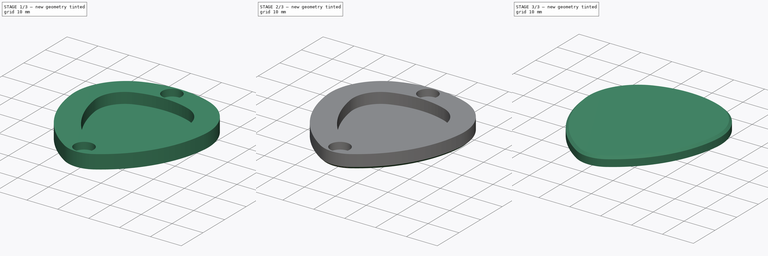
[diagram: build sequence overview — one tinted view per stage of 3, left to right]
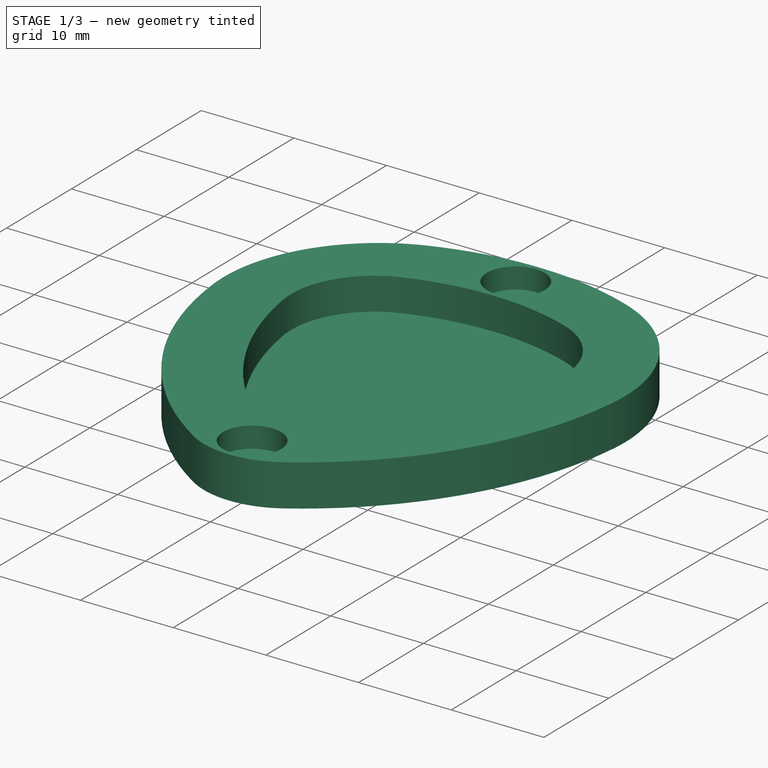
[diagram: stage 1 of 3 — iso view after this stage's code; geometry added in this stage tinted green]
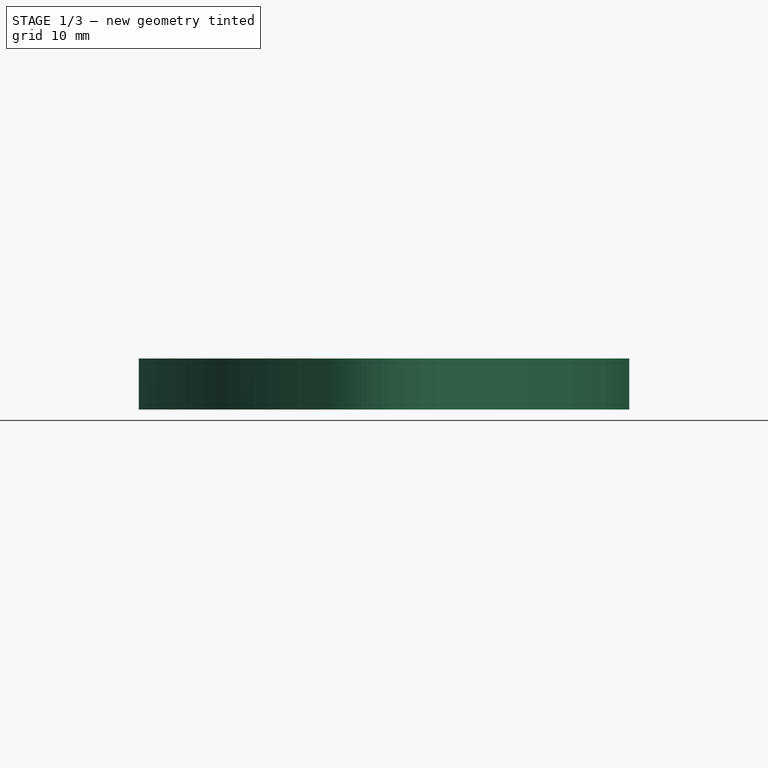
[diagram: stage 1 of 3 — front view after this stage's code; geometry added in this stage tinted green]
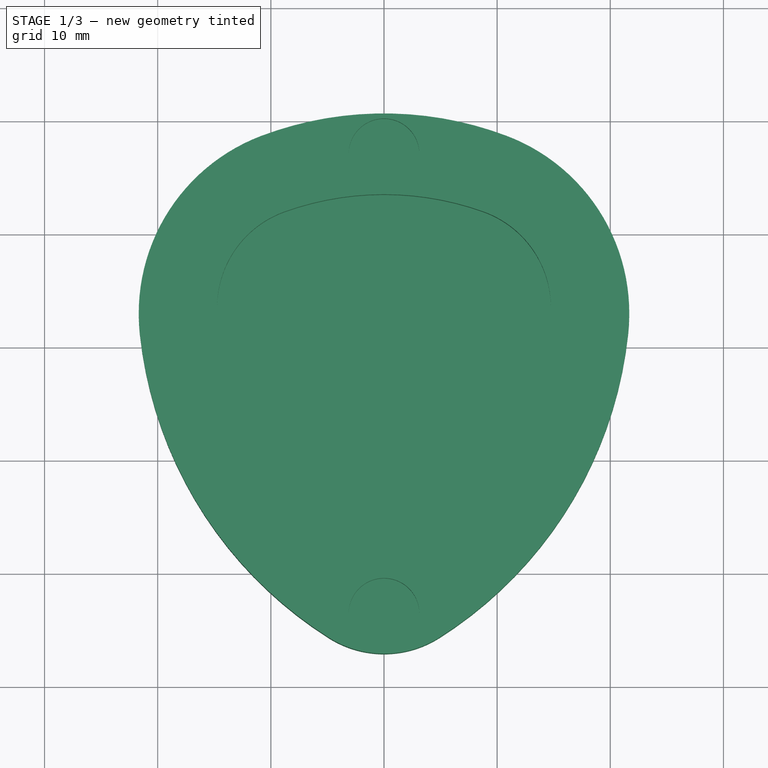
[diagram: stage 1 of 3 — top view after this stage's code; geometry added in this stage tinted green]
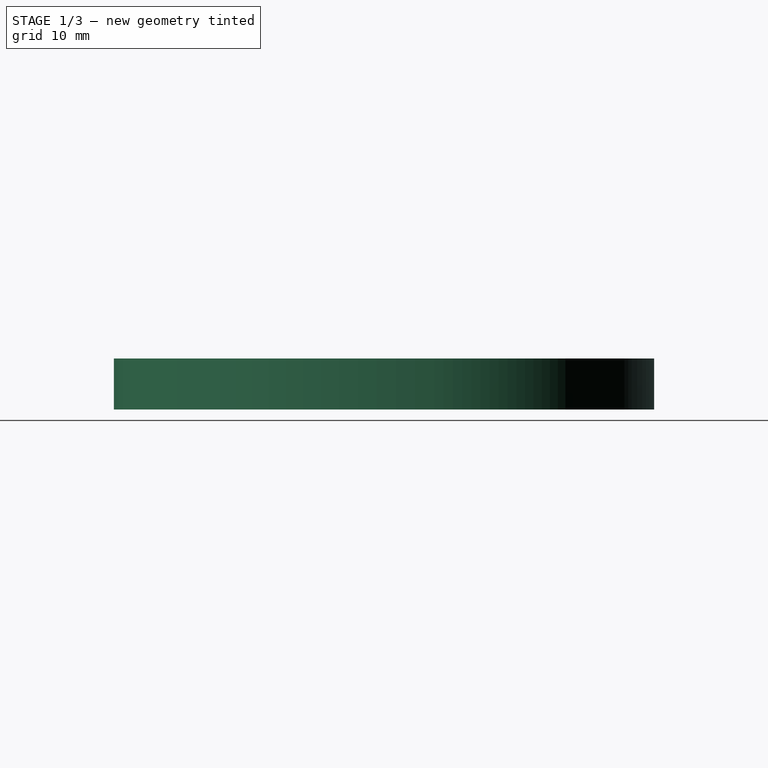
[diagram: stage 1 of 3 — right view after this stage's code; geometry added in this stage tinted green]
FCSTD DOCUMENT  (FreeCAD 1.1R20260223 (Git shallow))
Label: Mediator box
License: Creative Commons Attribution 4.0
objects: Sketcher::SketchObject×7, PartDesign::Pad×3, Part::DatumLine×3, App::Point×2, PartDesign::Pocket×2, PartDesign::Chamfer×2, PartDesign::Body×2, PartDesign::SubShapeBinder×1, Part::DatumPlane×1, PartDesign::Groove×1
note: 41 computed .brp shape members not serialized (recipe doc carries the construction recipe); baked Part::Feature solids carry a one-line shape summary decoded from their .brp

FEATURE [App::Point] Origin001
  Role = Origin
FEATURE [Sketcher::SketchObject] Sketch
  ArcFitTolerance = 1e-06
  AttachmentSupport = -> [Origin]
  ExternalTypes = [0]
  FullyConstrained = false
  MakeInternals = false
  MapMode = 5
  sketch-geometry (18):
    g0: ArcOfCircle CenterX=4.2e-15 CenterY=7.46875 CenterZ=0 NormalX=0 NormalY=0 NormalZ=1 AngleXU=0 Radius=26.0312 StartAngle=1.22641 EndAngle=1.91518
    g1: ArcOfCircle CenterX=-5.75 CenterY=23.5 CenterZ=0 NormalX=0 NormalY=0 NormalZ=1 AngleXU=0 Radius=9 StartAngle=1.91518 EndAngle=3.29213
    g2: ArcOfCircle CenterX=5.75 CenterY=23.5 CenterZ=0 NormalX=0 NormalY=0 NormalZ=1 AngleXU=0 Radius=9 StartAngle=6.13265 EndAngle=7.5096
    g3: GeomPoint [constr] X=-14.75 Y=23.5 Z=0
    g4: GeomPoint [constr] X=14.75 Y=23.5 Z=0
    g5: ArcOfCircle CenterX=6e-16 CenterY=4 CenterZ=0 NormalX=0 NormalY=0 NormalZ=1 AngleXU=0 Radius=4 StartAngle=4.02766 EndAngle=5.39712
    g6: ArcOfCircle CenterX=-18.9855 CenterY=27.2521 CenterZ=0 NormalX=0 NormalY=0 NormalZ=1 AngleXU=0 Radius=34.0185 StartAngle=5.39712 EndAngle=6.13265
    g7: ArcOfCircle CenterX=18.9855 CenterY=27.2521 CenterZ=0 NormalX=0 NormalY=0 NormalZ=1 AngleXU=0 Radius=34.0185 StartAngle=3.29213 EndAngle=4.02766
    g8: GeomPoint [constr] X=0 Y=33.5 Z=0
    g9: GeomPoint [constr] X=0 Y=0 Z=0
    g10: GeomPoint [constr] X=-12.75 Y=15 Z=0
    g11: GeomPoint [constr] X=12.75 Y=15 Z=0
    g12: ArcOfCircle CenterX=14.5649 CenterY=25.0237 CenterZ=0 NormalX=0 NormalY=0 NormalZ=1 AngleXU=0 Radius=36.3506 StartAngle=3.2464 EndAngle=4.14834
    g13: ArcOfCircle CenterX=-3.53565e-06 CenterY=2 CenterZ=0 NormalX=0 NormalY=0 NormalZ=1 AngleXU=0 Radius=9.10678 StartAngle=4.14834 EndAngle=5.27644
    g14: ArcOfCircle CenterX=-14.5649 CenterY=25.0237 CenterZ=0 NormalX=0 NormalY=0 NormalZ=1 AngleXU=0 Radius=36.3506 StartAngle=5.27644 EndAngle=6.17841
    g15: ArcOfCircle CenterX=4.90567 CenterY=22.9762 CenterZ=0 NormalX=0 NormalY=0 NormalZ=1 AngleXU=0 Radius=16.7727 StartAngle=6.17841 EndAngle=7.49254
    g16: ArcOfCircle CenterX=9.79746e-05 CenterY=10 CenterZ=0 NormalX=0 NormalY=0 NormalZ=1 AngleXU=0 Radius=30.6452 StartAngle=1.20936 EndAngle=1.93221
    g17: ArcOfCircle CenterX=-4.90484 CenterY=22.9756 CenterZ=0 NormalX=0 NormalY=0 NormalZ=1 AngleXU=0 Radius=16.7734 StartAngle=1.93221 EndAngle=3.2464
  constraints (38):
    c: Tangent(g1,g0) = -1.5708
    c: Tangent(g2,g0) = -1.5708
    c: Symmetric(g1,g2,g-2)
    c: Symmetric(g1,g2,g-2)
    c: PointOnObject(g3,g1)
    c: PointOnObject(g4,g2)
    c: Horizontal(g3,g1)
    c: Horizontal(g2,g4)
    c: DistanceX(g3,g4) = 29.5
    c: Radius(g5) = 4
    c: Symmetric(g5,g5,g-2)
    c: Tangent(g6,g5) = -1.5708
    c: Tangent(g6,g2) = -1.5708
    c: Tangent(g7,g1) = -1.5708
    c: Tangent(g7,g5) = -1.5708
    c: PointOnObject(g8,g0)
    c: PointOnObject(g9,g5)
    c: PointOnObject(g8,g-2)
    c: DistanceY(g9,g8) = 33.5
    c: DistanceY(g4,g8) = 10
    c: PointOnObject(g10,g7)
    c: Symmetric(g10,g11,g-2)
    c: DistanceY(g11,g8) = 18.5
    c: DistanceX(g10,g11) = 25.5
    c: Coincident(g9,g-1)
    c: Radius(g2) = 9
    c: Tangent(g12,g13) = -1.5708
    c: Tangent(g12,g17) = -1.5708
    c: Tangent(g13,g14) = -1.5708
    c: Tangent(g14,g15) = -1.5708
    c: Tangent(g15,g16) = -1.5708
    c: Tangent(g16,g17) = -1.5708
    c: Distance(g0,g15) = 7
    c: Distance(g16,g0) = 7
    c: Distance(g12,g1) = 7
    c: Distance(g5,g13) = 7
    c: Distance(g2,g14) = 7
    c: Distance(g5,g12) = 7
FEATURE [PartDesign::Pad] Pad
  Direction = (0,0,1)
  Length = 3.5
  Length2 = 10
  Profile = -> Sketch
  ReferenceAxis = -> Sketch [N_Axis]
  SideType = 0
  Suppressed = false
  Type = 0
  Type2 = 0
FEATURE [Sketcher::SketchObject] Sketch001
  ArcFitTolerance = 1e-06
  AttachmentSupport = -> [Pad]
  ExternalGeometry = -> [Pad]
  ExternalTypes = [0,0,0,0,0,0]
  FullyConstrained = true
  MakeInternals = false
  MapMode = 5
  Placement = pos=(0,0,0) rot=(1,0,0;3.14159rad)
FEATURE [PartDesign::Pad] Pad001
  BaseFeature = -> Pad
  Direction = (0,0,-1)
  Length = 1
  Length2 = 10
  Profile = -> Sketch001
  ReferenceAxis = -> Sketch001 [N_Axis]
  SideType = 0
  Suppressed = false
  Type = 0
  Type2 = 0
FEATURE [PartDesign::Pocket] Pocket
  BaseFeature = -> Pad001
  Direction = (0,0,-1)
  Length = 2.25
  Length2 = 5
  Profile = -> Sketch003
  ReferenceAxis = -> Sketch003 [N_Axis]
  SideType = 0
  Suppressed = false
  Type = 0
  Type2 = 0
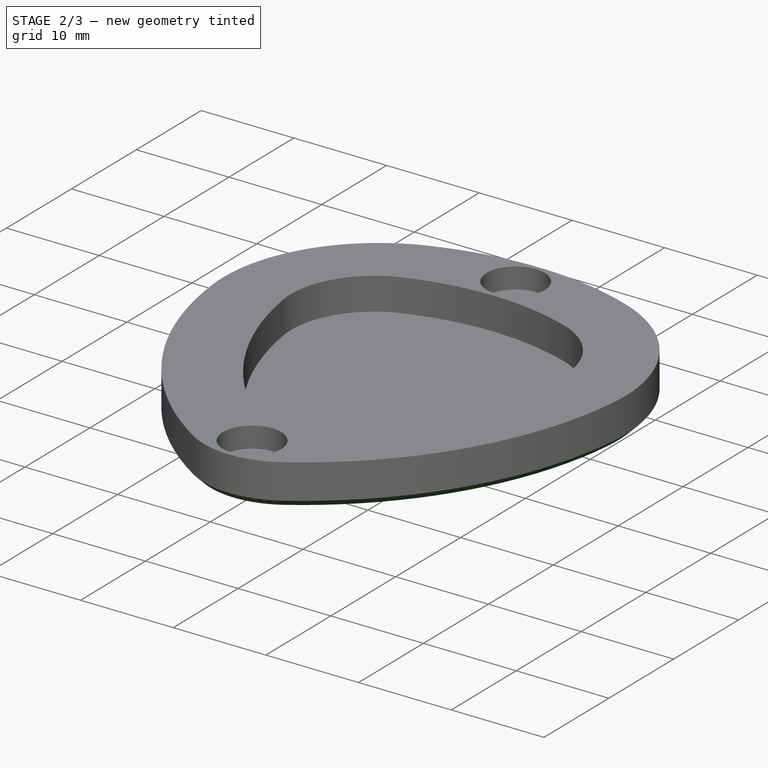
[diagram: stage 2 of 3 — iso view after this stage's code; geometry added in this stage tinted green]
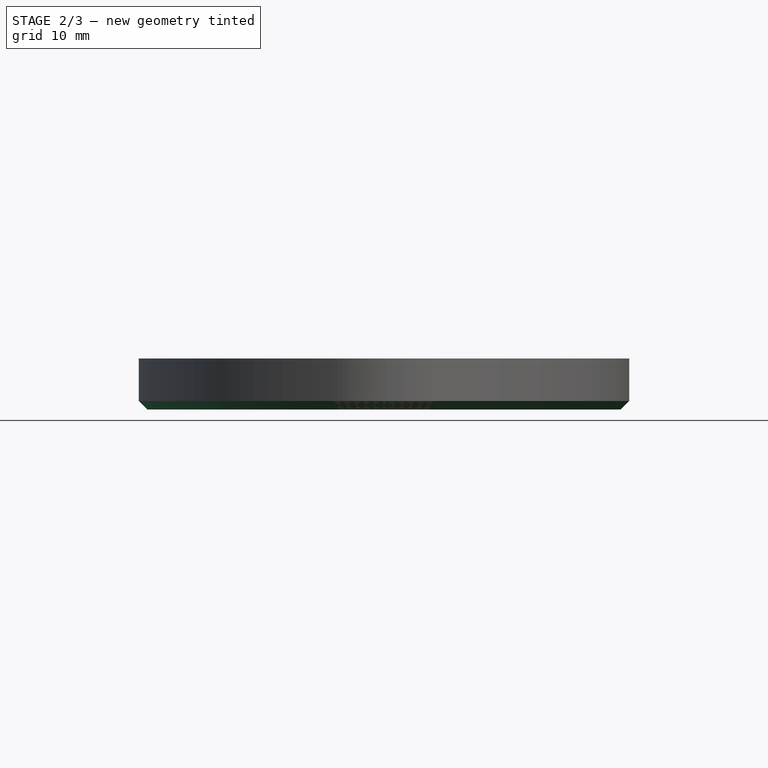
[diagram: stage 2 of 3 — front view after this stage's code; geometry added in this stage tinted green]
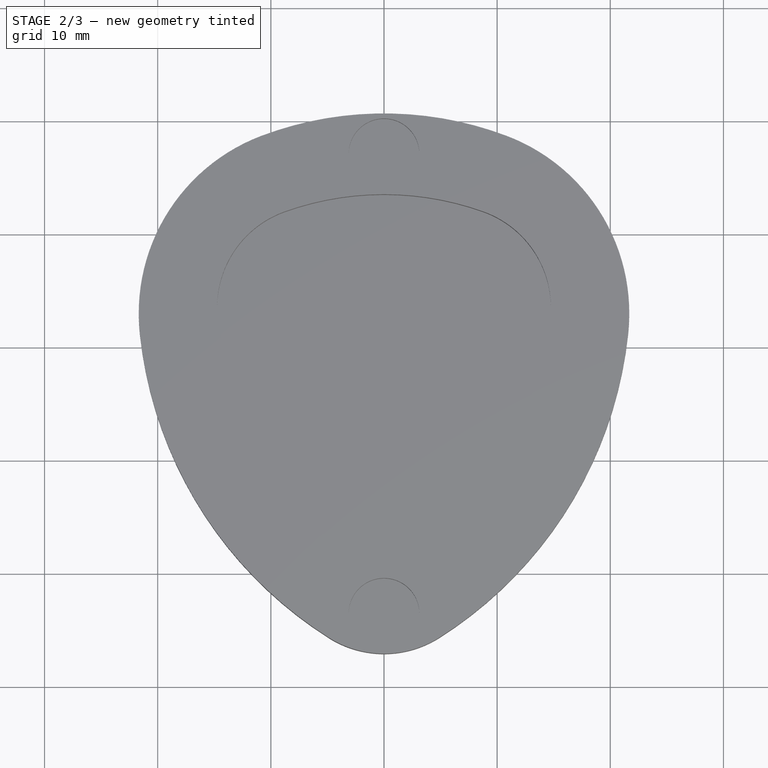
[diagram: stage 2 of 3 — top view after this stage's code; geometry added in this stage tinted green]
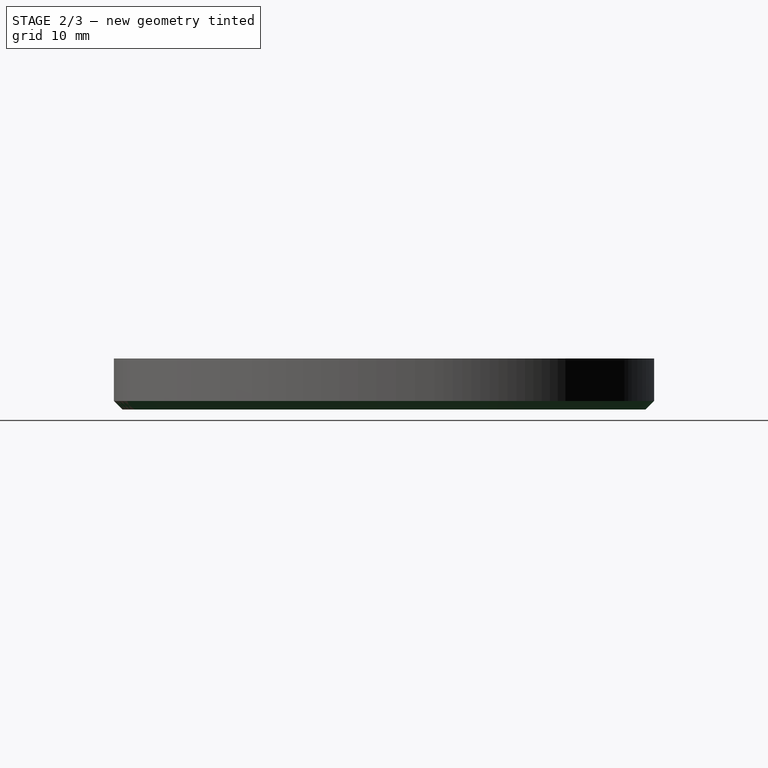
[diagram: stage 2 of 3 — right view after this stage's code; geometry added in this stage tinted green]
FEATURE [Sketcher::SketchObject] Sketch011
  ArcFitTolerance = 1e-06
  AttachmentSupport = -> [Pocket]
  ExternalGeometry = -> [Pocket]
  ExternalTypes = [0]
  FullyConstrained = true
  MakeInternals = false
  MapMode = 5
  Placement = pos=(0,0,-1) rot=(1,0,0;3.14159rad)
  sketch-geometry (3):
    g0: Circle CenterX=-17.0562 CenterY=-30.464 CenterZ=0 NormalX=0 NormalY=0 NormalZ=1 AngleXU=0 Radius=1.25
    g1: GeomPoint [constr] X=-19.1845 Y=-31.7756 Z=0
    g2: LineSegment [constr] StartX=-19.1845 StartY=-31.7756 StartZ=0 EndX=-4.90484 EndY=-22.9756 EndZ=0
  constraints (7):
    c: Diameter(g0) = 2.5
    c: PointOnObject(g1,g-3)
    c: Coincident(g2,g1)
    c: Coincident(g2,g-3)
    c: Symmetric(g-3,g-3,g2)
    c: PointOnObject(g0,g2)
    c: Distance(g1,g0) = 2.5
FEATURE [Part::DatumLine] DatumLine
  AttacherType = Attacher::AttachEngineLine
  AttachmentSupport = -> [Pocket]
  MapMode = 42
  Placement = pos=(-18.1788,31.1559,0) rot=(0,0,1;0rad)
FEATURE [Part::DatumLine] DatumLine001
  AttacherType = Attacher::AttachEngineLine
  AttachmentSupport = -> [Pocket]
  MapMode = 44
  Placement = pos=(-27.0906,16.6949,0) rot=(0.196478,0.693324,0.693324;2.75358rad)
FEATURE [Part::DatumPlane] DatumPlane
  AttachmentSupport = -> [DatumLine,DatumLine001]
  MapMode = 13
  Placement = pos=(-21.1494,26.3355,0.333333) rot=(0.784809,0.43822,0.43822;1.81077rad)
FEATURE [Part::DatumLine] DatumLine002
  AttacherType = Attacher::AttachEngineLine
  AttachmentOffset = pos=(1,0,0) rot=(0,0,1;0rad)
  AttachmentSupport = -> [Pocket]
  MapMode = 44
  Placement = pos=(-27.9419,17.2195,-1) rot=(0.196478,0.693324,0.693324;2.75358rad)
FEATURE [PartDesign::Groove] Groove
  Angle = 360
  Angle2 = 0
  Axis = (0.524639,0.851325,-1e-16)
  Base = (-27.9419,17.2195,-1)
  BaseFeature = -> Pocket
  Profile = -> Sketch011
  ReferenceAxis = -> DatumLine002
  Refine = true
  Reversed = true
  Suppressed = false
  Type = 0
FEATURE [PartDesign::Chamfer] Chamfer
  Angle = 45
  Base = -> Groove [Edge37]
  BaseFeature = -> Groove
  ChamferType = 0
  FlipDirection = false
  Size = 0.75
  Size2 = 1
  SupportTransform = false
  Suppressed = false
  UseAllEdges = false
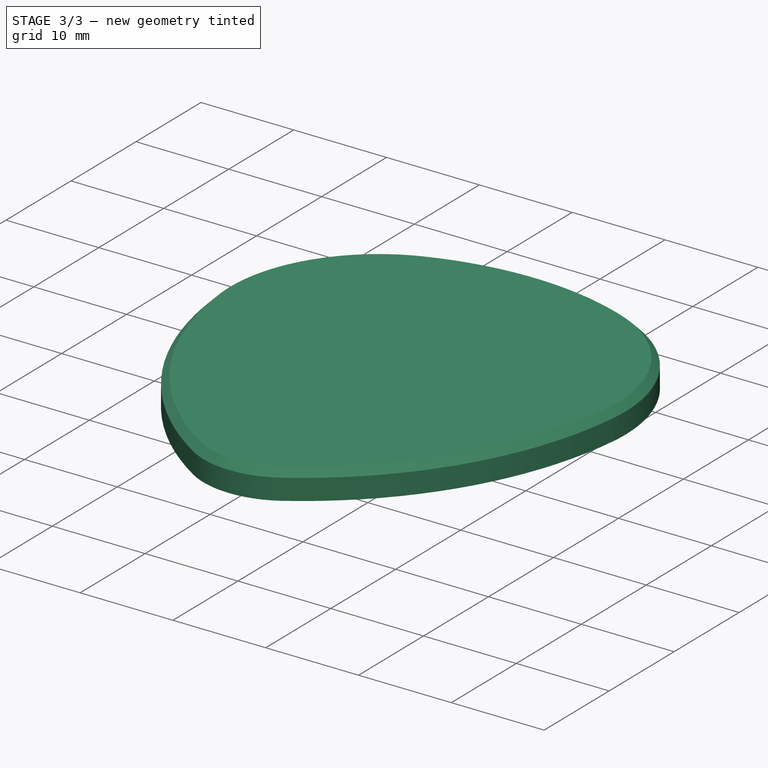
[diagram: stage 3 of 3 — iso view after this stage's code; geometry added in this stage tinted green]
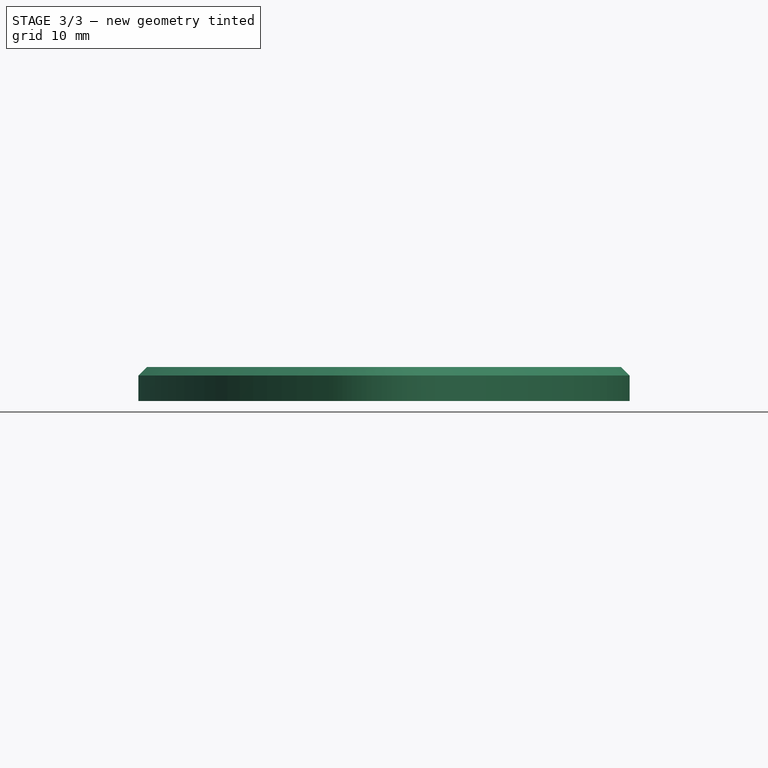
[diagram: stage 3 of 3 — front view after this stage's code; geometry added in this stage tinted green]
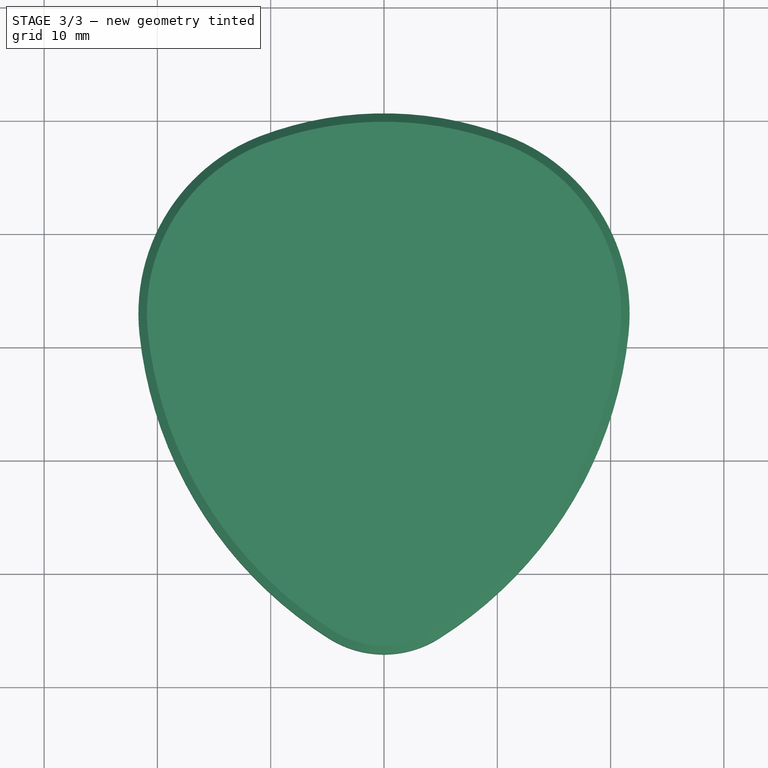
[diagram: stage 3 of 3 — top view after this stage's code; geometry added in this stage tinted green]
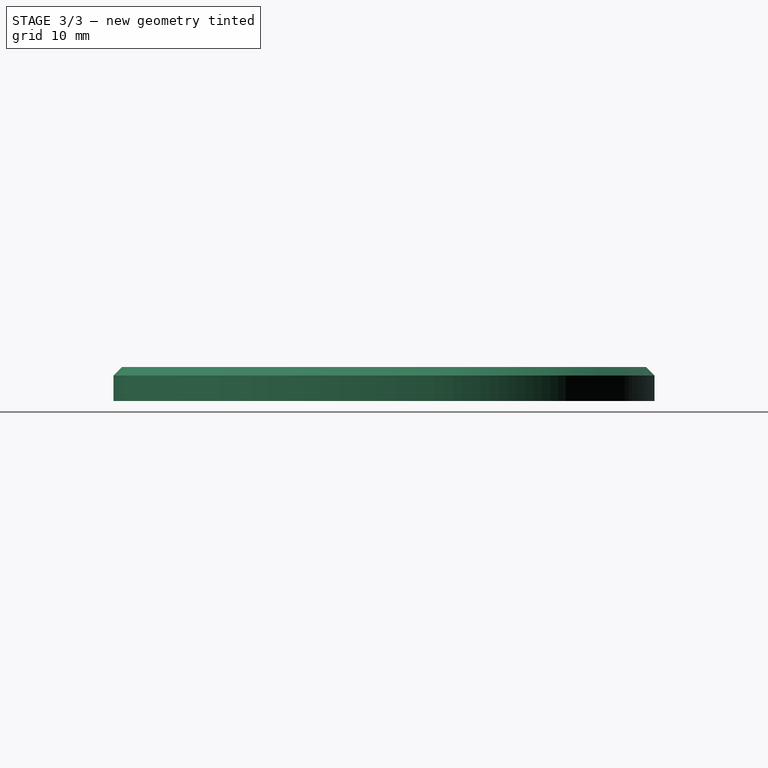
[diagram: stage 3 of 3 — right view after this stage's code; geometry added in this stage tinted green]
FEATURE [Sketcher::SketchObject] Sketch003
  ArcFitTolerance = 1e-06
  AttachmentSupport = -> [Pad001]
  ExternalGeometry = -> [Pad001]
  ExternalTypes = [0,0,0]
  FullyConstrained = true
  MakeInternals = false
  MapMode = 5
  Placement = pos=(0,0,3.5) rot=(0,0,1;0rad)
  sketch-geometry (5):
    g0: Circle CenterX=0 CenterY=-3.55339 CenterZ=0 NormalX=0 NormalY=0 NormalZ=1 AngleXU=0 Radius=3.125
    g1: GeomPoint [constr] X=0 Y=-7.10678 Z=0
    g2: Circle CenterX=0 CenterY=37.0726 CenterZ=0 NormalX=0 NormalY=0 NormalZ=1 AngleXU=0 Radius=3.125
    g3: GeomPoint [constr] X=0 Y=40.6452 Z=0
    g4: GeomPoint [constr] X=0 Y=33.5 Z=0
  constraints (10):
    c: Diameter(g0) = 6.25
    c: PointOnObject(g0,g-2)
    c: PointOnObject(g1,g-3)
    c: Symmetric(g1,g-1,g0)
    c: PointOnObject(g2,g-2)
    c: PointOnObject(g3,g-5)
    c: PointOnObject(g4,g-4)
    c: PointOnObject(g3,g-2)
    c: Symmetric(g4,g3,g2)
    c: Diameter(g2) = 6.25
FEATURE [Sketcher::SketchObject] Sketch008
  ArcFitTolerance = 1e-06
  ExternalTypes = [0]
  FullyConstrained = false
  MakeInternals = false
  MapMode = 5
  Placement = pos=(0,0,6.7) rot=(0,0,1;0rad)
  sketch-geometry (53):
    g0: BSplineCurve PolesCount=4 KnotsCount=2 Degree=3 IsPeriodic=0
    g1: BSplineCurve PolesCount=4 KnotsCount=2 Degree=3 IsPeriodic=0
    g2: BSplineCurve PolesCount=2 KnotsCount=2 Degree=1 IsPeriodic=0
    g3: BSplineCurve PolesCount=4 KnotsCount=2 Degree=3 IsPeriodic=0
    g4: BSplineCurve PolesCount=4 KnotsCount=2 Degree=3 IsPeriodic=0
    g5: BSplineCurve PolesCount=4 KnotsCount=2 Degree=3 IsPeriodic=0
    g6: BSplineCurve PolesCount=2 KnotsCount=2 Degree=1 IsPeriodic=0
    g7: BSplineCurve PolesCount=4 KnotsCount=2 Degree=3 IsPeriodic=0
    g8: BSplineCurve PolesCount=2 KnotsCount=2 Degree=1 IsPeriodic=0
    g9: BSplineCurve PolesCount=2 KnotsCount=2 Degree=1 IsPeriodic=0
    g10: BSplineCurve PolesCount=2 KnotsCount=2 Degree=1 IsPeriodic=0
    g11: BSplineCurve PolesCount=2 KnotsCount=2 Degree=1 IsPeriodic=0
    g12: BSplineCurve PolesCount=2 KnotsCount=2 Degree=1 IsPeriodic=0
    g13: BSplineCurve PolesCount=2 KnotsCount=2 Degree=1 IsPeriodic=0
    g14: BSplineCurve PolesCount=2 KnotsCount=2 Degree=1 IsPeriodic=0
    g15: BSplineCurve PolesCount=2 KnotsCount=2 Degree=1 IsPeriodic=0
    g16: BSplineCurve PolesCount=2 KnotsCount=2 Degree=1 IsPeriodic=0
    g17: BSplineCurve PolesCount=2 KnotsCount=2 Degree=1 IsPeriodic=0
    g18: BSplineCurve PolesCount=2 KnotsCount=2 Degree=1 IsPeriodic=0
    g19: BSplineCurve PolesCount=2 KnotsCount=2 Degree=1 IsPeriodic=0
    g20: BSplineCurve PolesCount=2 KnotsCount=2 Degree=1 IsPeriodic=0
    g21: BSplineCurve PolesCount=2 KnotsCount=2 Degree=1 IsPeriodic=0
    g22: BSplineCurve PolesCount=2 KnotsCount=2 Degree=1 IsPeriodic=0
    g23: BSplineCurve PolesCount=2 KnotsCount=2 Degree=1 IsPeriodic=0
    g24: BSplineCurve PolesCount=2 KnotsCount=2 Degree=1 IsPeriodic=0
    g25: BSplineCurve PolesCount=2 KnotsCount=2 Degree=1 IsPeriodic=0
    g26: BSplineCurve PolesCount=2 KnotsCount=2 Degree=1 IsPeriodic=0
    g27: BSplineCurve PolesCount=2 KnotsCount=2 Degree=1 IsPeriodic=0
    g28: BSplineCurve PolesCount=2 KnotsCount=2 Degree=1 IsPeriodic=0
    g29: BSplineCurve PolesCount=2 KnotsCount=2 Degree=1 IsPeriodic=0
    g30: BSplineCurve PolesCount=2 KnotsCount=2 Degree=1 IsPeriodic=0
    g31: BSplineCurve PolesCount=2 KnotsCount=2 Degree=1 IsPeriodic=0
    g32: BSplineCurve PolesCount=2 KnotsCount=2 Degree=1 IsPeriodic=0
    g33: BSplineCurve PolesCount=2 KnotsCount=2 Degree=1 IsPeriodic=0
    g34: BSplineCurve PolesCount=2 KnotsCount=2 Degree=1 IsPeriodic=0
    g35: BSplineCurve PolesCount=2 KnotsCount=2 Degree=1 IsPeriodic=0
    g36: BSplineCurve PolesCount=2 KnotsCount=2 Degree=1 IsPeriodic=0
    g37: BSplineCurve PolesCount=2 KnotsCount=2 Degree=1 IsPeriodic=0
    g38: BSplineCurve PolesCount=2 KnotsCount=2 Degree=1 IsPeriodic=0
    g39: BSplineCurve PolesCount=2 KnotsCount=2 Degree=1 IsPeriodic=0
    g40: BSplineCurve PolesCount=2 KnotsCount=2 Degree=1 IsPeriodic=0
    g41: BSplineCurve PolesCount=2 KnotsCount=2 Degree=1 IsPeriodic=0
    g42: BSplineCurve PolesCount=4 KnotsCount=2 Degree=3 IsPeriodic=0
    g43: BSplineCurve PolesCount=4 KnotsCount=2 Degree=3 IsPeriodic=0
    g44: BSplineCurve PolesCount=4 KnotsCount=2 Degree=3 IsPeriodic=0
    g45: BSplineCurve PolesCount=4 KnotsCount=2 Degree=3 IsPeriodic=0
    g46: BSplineCurve PolesCount=2 KnotsCount=2 Degree=1 IsPeriodic=0
    g47: BSplineCurve PolesCount=2 KnotsCount=2 Degree=1 IsPeriodic=0
    g48: BSplineCurve PolesCount=2 KnotsCount=2 Degree=1 IsPeriodic=0
    g49: BSplineCurve PolesCount=4 KnotsCount=2 Degree=3 IsPeriodic=0
    g50: BSplineCurve PolesCount=4 KnotsCount=2 Degree=3 IsPeriodic=0
    g51: BSplineCurve PolesCount=2 KnotsCount=2 Degree=1 IsPeriodic=0
    g52: BSplineCurve PolesCount=2 KnotsCount=2 Degree=1 IsPeriodic=0
  constraints (53):
    c: Coincident(g26,g27)
    c: Coincident(g24,g27)
    c: Coincident(g22,g23)
    c: Coincident(g20,g23)
    c: Coincident(g28,g29)
    c: Coincident(g28,g40)
    c: Coincident(g29,g30)
    c: Coincident(g30,g31)
    c: Coincident(g39,g40)
    c: Coincident(g31,g32)
    c: Coincident(g38,g39)
    c: Coincident(g32,g33)
    c: Coincident(g37,g38)
    c: Coincident(g34,g35)
    c: Coincident(g33,g34)
    c: Coincident(g35,g36)
    c: Coincident(g36,g37)
    c: Coincident(g41,g42)
    c: Coincident(g41,g52)
    c: Coincident(g42,g43)
    c: Coincident(g50,g51)
    c: Coincident(g51,g52)
    c: Coincident(g43,g44)
    c: Coincident(g49,g50)
    c: Coincident(g48,g49)
    c: Coincident(g47,g48)
    c: Coincident(g44,g45)
    c: Coincident(g45,g46)
    c: Coincident(g46,g47)
    c: Coincident(g0,g7)
    c: Coincident(g2,g3)
    c: Coincident(g1,g2)
    c: Coincident(g4,g5)
    c: Coincident(g0,g1)
    c: Coincident(g5,g6)
    c: Coincident(g6,g7)
    c: Coincident(g3,g4)
    c: Coincident(g8,g9)
    c: Coincident(g8,g19)
    c: Coincident(g11,g12)
    c: Coincident(g12,g13)
    c: Coincident(g15,g16)
    c: Coincident(g16,g17)
    c: Coincident(g13,g14)
    c: Coincident(g14,g15)
    c: Coincident(g9,g10)
    c: Coincident(g10,g11)
    c: Coincident(g17,g18)
    c: Coincident(g18,g19)
    c: Coincident(g25,g26)
    c: Coincident(g24,g25)
    c: Coincident(g21,g22)
    c: Coincident(g20,g21)
FEATURE [App::Point] Origin003
  Role = Origin
FEATURE [PartDesign::SubShapeBinder] Binder
  BindCopyOnChange = 0
  BindMode = 0
  ClaimChildren = false
  Context = -> Body001 [Binder.]
  Fuse = false
  MakeFace = true
  OffsetFill = false
  OffsetIntersection = false
  OffsetJoinType = 0
  OffsetOpenResult = false
  PartialLoad = false
  Refine = true
  Relative = true
  Support = -> [Body[Pad001.]]
  _Version = 2
FEATURE [Sketcher::SketchObject] Sketch009
  ArcFitTolerance = 1e-06
  AttachmentSupport = -> [Binder]
  ExternalGeometry = -> [Binder]
  ExternalTypes = [0,0,0,0,0,0]
  FullyConstrained = true
  MakeInternals = false
  MapMode = 5
  Placement = pos=(0,0,3.5) rot=(0,0,1;0rad)
FEATURE [PartDesign::Pad] Pad005
  Direction = (0,0,1)
  Length = 3
  Length2 = 10
  Profile = -> Sketch009
  ReferenceAxis = -> Sketch009 [N_Axis]
  SideType = 0
  Suppressed = false
  Type = 0
  Type2 = 0
FEATURE [Sketcher::SketchObject] Sketch010
  ArcFitTolerance = 1e-06
  AttachmentSupport = -> [Pad005]
  ExternalGeometry = -> [Binder]
  ExternalTypes = [0,0,0,0]
  FullyConstrained = true
  MakeInternals = false
  MapMode = 5
  Placement = pos=(0,0,3.5) rot=(1,0,0;3.14159rad)
  sketch-geometry (6):
    g0: Circle CenterX=0 CenterY=3.55339 CenterZ=0 NormalX=0 NormalY=0 NormalZ=1 AngleXU=0 Radius=3.125
    g1: Circle CenterX=0 CenterY=-37.0726 CenterZ=0 NormalX=0 NormalY=0 NormalZ=1 AngleXU=0 Radius=3.125
    g2: GeomPoint [constr] X=0 Y=7.10678 Z=0
    g3: GeomPoint [constr] X=0 Y=-1e-16 Z=0
    g4: GeomPoint [constr] X=0 Y=-33.5 Z=0
    g5: GeomPoint [constr] X=0 Y=-40.6452 Z=0
  constraints (12):
    c: Diameter(g0) = 6.25
    c: PointOnObject(g0,g-2)
    c: Diameter(g1) = 6.25
    c: PointOnObject(g1,g-2)
    c: PointOnObject(g2,g-5)
    c: PointOnObject(g3,g-6)
    c: PointOnObject(g4,g-4)
    c: PointOnObject(g5,g-3)
    c: PointOnObject(g4,g-2)
    c: PointOnObject(g2,g-2)
    c: Symmetric(g3,g2,g0)
    c: Symmetric(g4,g5,g1)
FEATURE [PartDesign::Pocket] Pocket003
  BaseFeature = -> Pad005
  Direction = (0,0,1)
  Length = 2.25
  Length2 = 5
  Profile = -> Sketch010
  ReferenceAxis = -> Sketch010 [N_Axis]
  SideType = 0
  Suppressed = false
  Type = 0
  Type2 = 0
FEATURE [PartDesign::Body] Body  label="Bottom"
  AllowCompound = true
  Group = -> [Sketch,Pad,Sketch001,Pad001,Sketch003,Sketch008,Pocket,Sketch011,DatumLine,DatumLine001,DatumPlane,DatumLine002,Groove,Chamfer]
  Origin = -> Origin
  Tip = -> Chamfer
FEATURE [PartDesign::Chamfer] Chamfer001
  Angle = 45
  Base = -> Pocket003 [Edge17]
  BaseFeature = -> Pocket003
  ChamferType = 0
  FlipDirection = false
  Size = 0.75
  Size2 = 1
  SupportTransform = false
  Suppressed = false
  UseAllEdges = false
FEATURE [PartDesign::Body] Body001  label="Top"
  AllowCompound = false
  Group = -> [Binder,Sketch009,Pad005,Sketch010,Pocket003,Chamfer001]
  Origin = -> Origin002
  Tip = -> Chamfer001
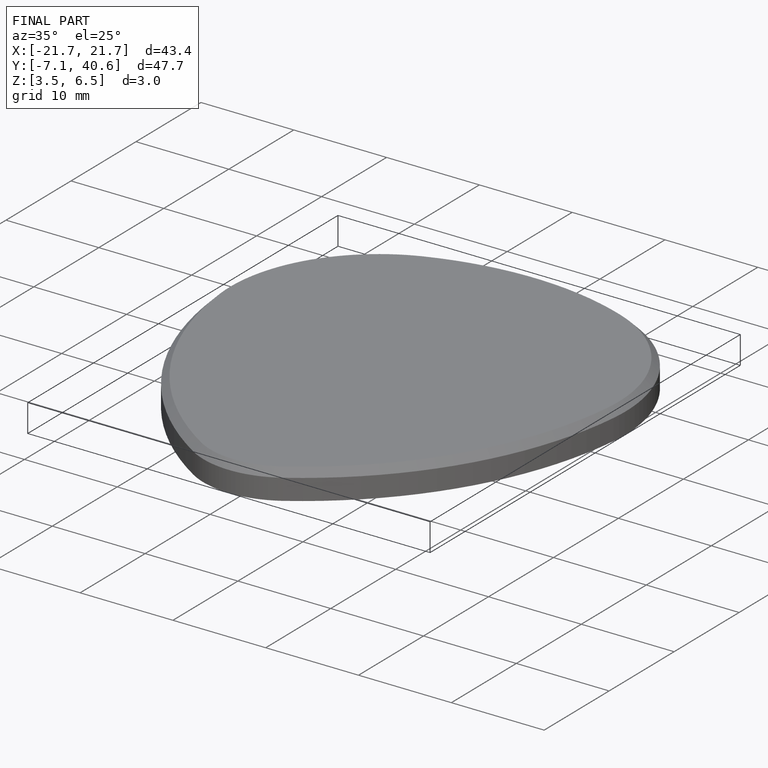
[diagram: finished part — iso view with bounding-box wireframe]
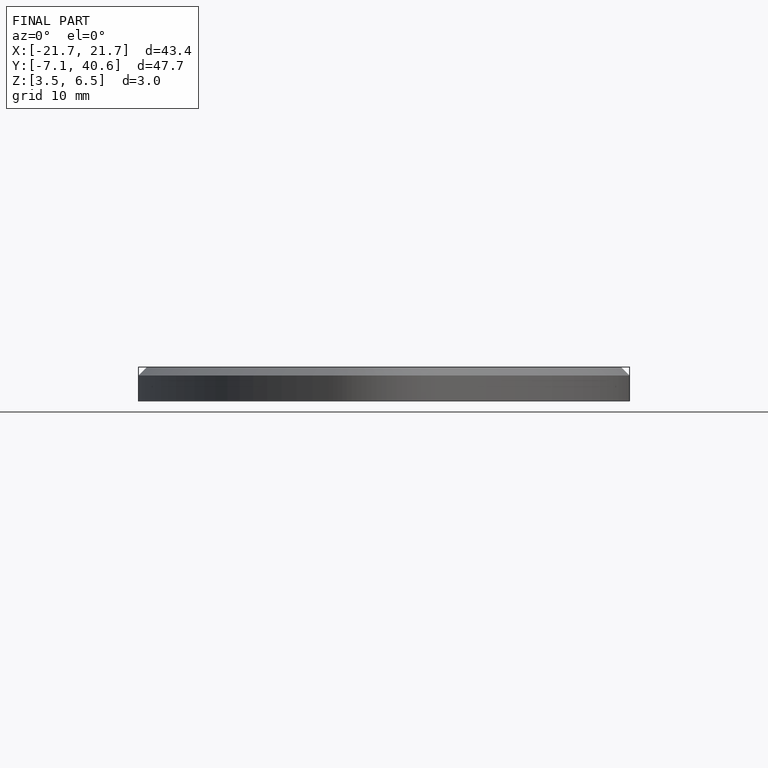
[diagram: finished part — front view with bounding-box wireframe]
